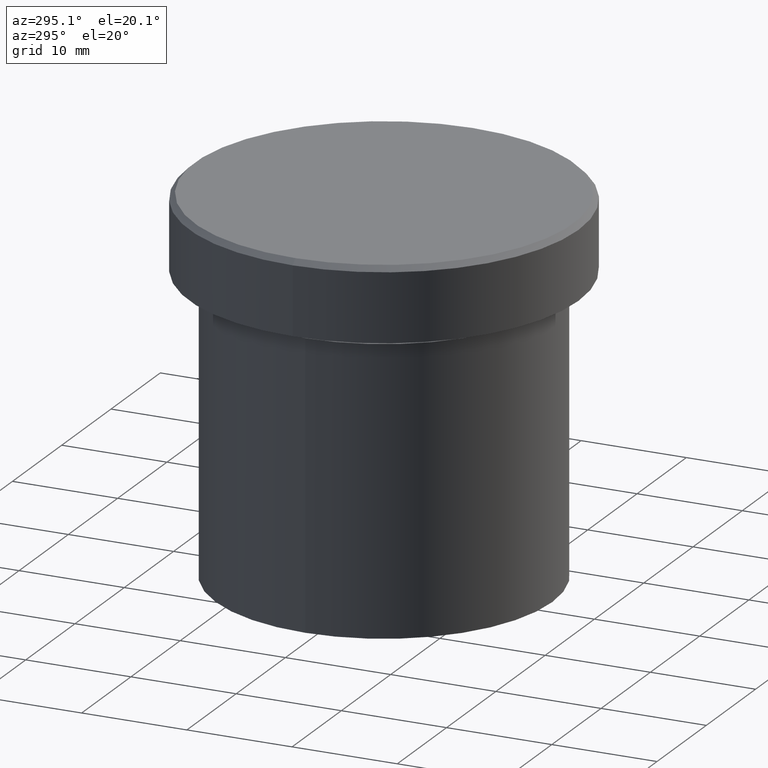
[diagram: clean part render]
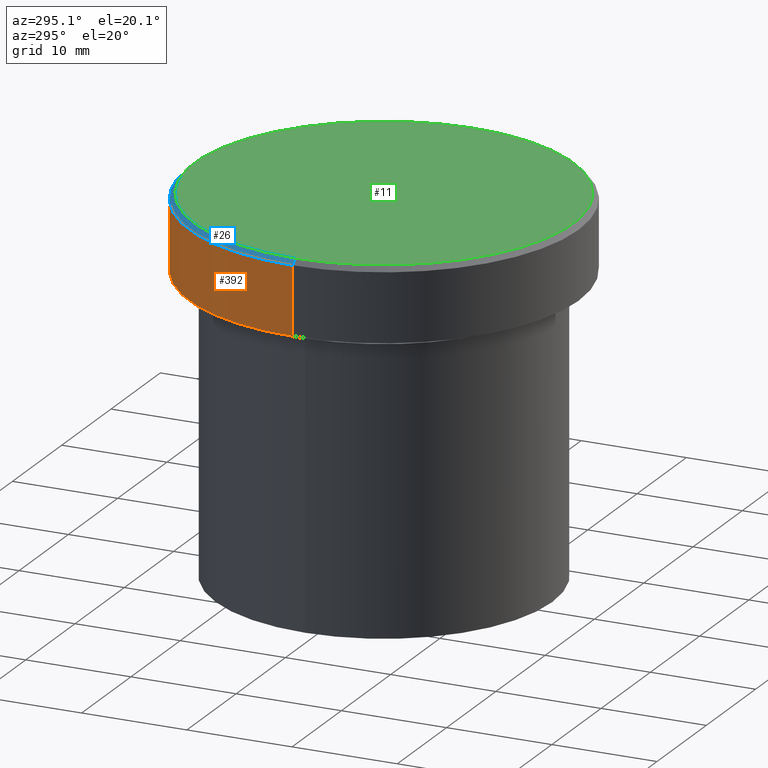
[diagram: same view with three faces highlighted in distinct colors, each labeled with its STEP entity id]
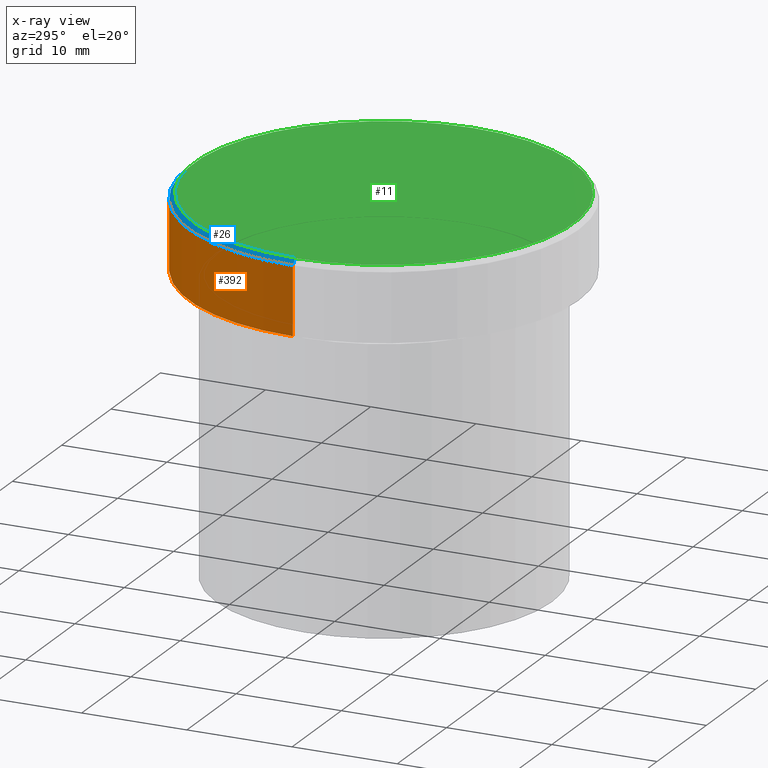
[diagram: x-ray of the same camera — body ghosted, the three highlighted faces saturated]
A machine part, auxiliary view with three faces highlighted in distinct colors.
The next image is the same camera in x-ray (body ghosted, the three faces saturated) — at least one of them is partly hidden behind the body in this view.
Their STEP definitions:

[orange] entity #392 — the highlighted cylindrical surface (partial cylindrical patch) has radius 18.5 mm, axis along (-0, -0, 1).
#3 = DIRECTION ( 'NONE',  ( 1.000000000000000000, 0.000000000000000000, 0.000000000000000000 ) ) ;
#21 = EDGE_LOOP ( 'NONE', ( #148, #104, #323, #394 ) ) ;
#23 = CIRCLE ( 'NONE', #409, 18.50000000000000000 ) ;
#52 = DIRECTION ( 'NONE',  ( 1.000000000000000000, 0.000000000000000000, 0.000000000000000000 ) ) ;
#57 = LINE ( 'NONE', #368, #141 ) ;
#100 = CARTESIAN_POINT ( 'NONE',  ( -18.50000000000000000, 2.265596578422603396E-15, -0.4999999999999936162 ) ) ;
#104 = ORIENTED_EDGE ( 'NONE', *, *, #201, .T. ) ;
#114 = DIRECTION ( 'NONE',  ( 0.000000000000000000, 0.000000000000000000, -1.000000000000000000 ) ) ;
#139 = EDGE_CURVE ( 'NONE', #295, #276, #304, .T. ) ;
#141 = VECTOR ( 'NONE', #338, 1000.000000000000000 ) ;
#148 = ORIENTED_EDGE ( 'NONE', *, *, #226, .T. ) ;
#159 = EDGE_CURVE ( 'NONE', #374, #276, #235, .T. ) ;
#160 = CARTESIAN_POINT ( 'NONE',  ( 0.000000000000000000, 0.000000000000000000, 0.000000000000000000 ) ) ;
#170 = VERTEX_POINT ( 'NONE', #209 ) ;
#182 = DIRECTION ( 'NONE',  ( 1.000000000000000000, 0.000000000000000000, 0.000000000000000000 ) ) ;
#186 = CARTESIAN_POINT ( 'NONE',  ( 18.50000000000000000, 0.000000000000000000, -6.999999999999999112 ) ) ;
#190 = CYLINDRICAL_SURFACE ( 'NONE', #371, 18.50000000000000000 ) ;
#201 = EDGE_CURVE ( 'NONE', #170, #295, #57, .T. ) ;
#209 = CARTESIAN_POINT ( 'NONE',  ( -18.50000000000000000, 2.265596578422603396E-15, -6.999999999999999112 ) ) ;
#217 = CARTESIAN_POINT ( 'NONE',  ( 0.000000000000000000, 0.000000000000000000, -0.4999999999999936162 ) ) ;
#226 = EDGE_CURVE ( 'NONE', #374, #170, #23, .T. ) ;
#231 = AXIS2_PLACEMENT_3D ( 'NONE', #217, #114, #182 ) ;
#235 = LINE ( 'NONE', #373, #264 ) ;
#248 = FACE_OUTER_BOUND ( 'NONE', #21, .T. ) ;
#264 = VECTOR ( 'NONE', #345, 1000.000000000000000 ) ;
#276 = VERTEX_POINT ( 'NONE', #314 ) ;
#289 = DIRECTION ( 'NONE',  ( -0.000000000000000000, -0.000000000000000000, 1.000000000000000000 ) ) ;
#295 = VERTEX_POINT ( 'NONE', #100 ) ;
#302 = CARTESIAN_POINT ( 'NONE',  ( 0.000000000000000000, 0.000000000000000000, -6.999999999999999112 ) ) ;
#304 = CIRCLE ( 'NONE', #231, 18.50000000000000000 ) ;
#314 = CARTESIAN_POINT ( 'NONE',  ( 18.50000000000000000, 0.000000000000000000, -0.4999999999999936162 ) ) ;
#323 = ORIENTED_EDGE ( 'NONE', *, *, #139, .T. ) ;
#338 = DIRECTION ( 'NONE',  ( -0.000000000000000000, -0.000000000000000000, 1.000000000000000000 ) ) ;
#345 = DIRECTION ( 'NONE',  ( -0.000000000000000000, -0.000000000000000000, 1.000000000000000000 ) ) ;
#368 = CARTESIAN_POINT ( 'NONE',  ( -18.50000000000000000, 2.265596578422603396E-15, 0.000000000000000000 ) ) ;
#371 = AXIS2_PLACEMENT_3D ( 'NONE', #160, #289, #3 ) ;
#373 = CARTESIAN_POINT ( 'NONE',  ( 18.50000000000000000, 0.000000000000000000, 0.000000000000000000 ) ) ;
#374 = VERTEX_POINT ( 'NONE', #186 ) ;
#392 = ADVANCED_FACE ( 'NONE', ( #248 ), #190, .T. ) ;
#394 = ORIENTED_EDGE ( 'NONE', *, *, #159, .F. ) ;
#399 = DIRECTION ( 'NONE',  ( -0.000000000000000000, -0.000000000000000000, 1.000000000000000000 ) ) ;
#409 = AXIS2_PLACEMENT_3D ( 'NONE', #302, #399, #52 ) ;

[blue] entity #26 — the highlighted conical surface has half-angle 45 deg.
#25 = CARTESIAN_POINT ( 'NONE',  ( 0.000000000000000000, 0.000000000000000000, 0.000000000000000000 ) ) ;
#26 = ADVANCED_FACE ( 'NONE', ( #317 ), #341, .T. ) ;
#40 = EDGE_LOOP ( 'NONE', ( #241, #270, #74, #109 ) ) ;
#61 = CARTESIAN_POINT ( 'NONE',  ( 0.000000000000000000, 0.000000000000000000, 0.000000000000000000 ) ) ;
#71 = DIRECTION ( 'NONE',  ( -0.7071067811865549002, 0.000000000000000000, -0.7071067811865402453 ) ) ;
#74 = ORIENTED_EDGE ( 'NONE', *, *, #139, .F. ) ;
#86 = VERTEX_POINT ( 'NONE', #93 ) ;
#88 = LINE ( 'NONE', #165, #378 ) ;
#90 = CIRCLE ( 'NONE', #333, 17.99999999999999645 ) ;
#93 = CARTESIAN_POINT ( 'NONE',  ( 17.99999999999999645, 2.234980408443919215E-15, 0.000000000000000000 ) ) ;
#95 = DIRECTION ( 'NONE',  ( 0.7071067811865549002, 8.659560562355021605E-17, -0.7071067811865402453 ) ) ;
#100 = CARTESIAN_POINT ( 'NONE',  ( -18.50000000000000000, 2.265596578422603396E-15, -0.4999999999999936162 ) ) ;
#101 = LINE ( 'NONE', #228, #352 ) ;
#109 = ORIENTED_EDGE ( 'NONE', *, *, #119, .F. ) ;
#114 = DIRECTION ( 'NONE',  ( 0.000000000000000000, 0.000000000000000000, -1.000000000000000000 ) ) ;
#119 = EDGE_CURVE ( 'NONE', #121, #295, #101, .T. ) ;
#121 = VERTEX_POINT ( 'NONE', #303 ) ;
#139 = EDGE_CURVE ( 'NONE', #295, #276, #304, .T. ) ;
#144 = EDGE_CURVE ( 'NONE', #86, #121, #90, .T. ) ;
#165 = CARTESIAN_POINT ( 'NONE',  ( 17.99999999999999645, 2.204364238465235033E-15, 0.000000000000000000 ) ) ;
#182 = DIRECTION ( 'NONE',  ( 1.000000000000000000, 0.000000000000000000, 0.000000000000000000 ) ) ;
#195 = DIRECTION ( 'NONE',  ( -1.000000000000000000, 0.000000000000000000, 0.000000000000000000 ) ) ;
#217 = CARTESIAN_POINT ( 'NONE',  ( 0.000000000000000000, 0.000000000000000000, -0.4999999999999936162 ) ) ;
#228 = CARTESIAN_POINT ( 'NONE',  ( -17.99999999999999645, 0.000000000000000000, 0.000000000000000000 ) ) ;
#231 = AXIS2_PLACEMENT_3D ( 'NONE', #217, #114, #182 ) ;
#239 = EDGE_CURVE ( 'NONE', #86, #276, #88, .T. ) ;
#241 = ORIENTED_EDGE ( 'NONE', *, *, #144, .F. ) ;
#270 = ORIENTED_EDGE ( 'NONE', *, *, #239, .T. ) ;
#273 = DIRECTION ( 'NONE',  ( -0.000000000000000000, -0.000000000000000000, 1.000000000000000000 ) ) ;
#276 = VERTEX_POINT ( 'NONE', #314 ) ;
#295 = VERTEX_POINT ( 'NONE', #100 ) ;
#303 = CARTESIAN_POINT ( 'NONE',  ( -17.99999999999999645, 0.000000000000000000, 0.000000000000000000 ) ) ;
#304 = CIRCLE ( 'NONE', #231, 18.50000000000000000 ) ;
#314 = CARTESIAN_POINT ( 'NONE',  ( 18.50000000000000000, 0.000000000000000000, -0.4999999999999936162 ) ) ;
#317 = FACE_OUTER_BOUND ( 'NONE', #40, .T. ) ;
#333 = AXIS2_PLACEMENT_3D ( 'NONE', #25, #273, #340 ) ;
#340 = DIRECTION ( 'NONE',  ( 1.000000000000000000, 0.000000000000000000, 0.000000000000000000 ) ) ;
#341 = CONICAL_SURFACE ( 'NONE', #407, 17.99999999999999645, 0.7853981633974587151 ) ;
#349 = DIRECTION ( 'NONE',  ( 0.000000000000000000, 0.000000000000000000, -1.000000000000000000 ) ) ;
#352 = VECTOR ( 'NONE', #71, 1000.000000000000114 ) ;
#378 = VECTOR ( 'NONE', #95, 1000.000000000000114 ) ;
#407 = AXIS2_PLACEMENT_3D ( 'NONE', #61, #349, #195 ) ;

[green] entity #11 — the highlighted planar face has unit normal (0, -0, 1).
#5 = DIRECTION ( 'NONE',  ( 1.000000000000000000, 0.000000000000000000, 0.000000000000000000 ) ) ;
#11 = ADVANCED_FACE ( 'NONE', ( #65 ), #193, .T. ) ;
#19 = DIRECTION ( 'NONE',  ( -0.000000000000000000, -0.000000000000000000, 1.000000000000000000 ) ) ;
#25 = CARTESIAN_POINT ( 'NONE',  ( 0.000000000000000000, 0.000000000000000000, 0.000000000000000000 ) ) ;
#28 = AXIS2_PLACEMENT_3D ( 'NONE', #157, #19, #212 ) ;
#42 = ORIENTED_EDGE ( 'NONE', *, *, #166, .T. ) ;
#65 = FACE_OUTER_BOUND ( 'NONE', #171, .T. ) ;
#86 = VERTEX_POINT ( 'NONE', #93 ) ;
#90 = CIRCLE ( 'NONE', #333, 17.99999999999999645 ) ;
#93 = CARTESIAN_POINT ( 'NONE',  ( 17.99999999999999645, 2.234980408443919215E-15, 0.000000000000000000 ) ) ;
#121 = VERTEX_POINT ( 'NONE', #303 ) ;
#143 = ORIENTED_EDGE ( 'NONE', *, *, #144, .T. ) ;
#144 = EDGE_CURVE ( 'NONE', #86, #121, #90, .T. ) ;
#157 = CARTESIAN_POINT ( 'NONE',  ( 0.000000000000000000, 0.000000000000000000, 0.000000000000000000 ) ) ;
#166 = EDGE_CURVE ( 'NONE', #121, #86, #172, .T. ) ;
#171 = EDGE_LOOP ( 'NONE', ( #42, #143 ) ) ;
#172 = CIRCLE ( 'NONE', #28, 17.99999999999999645 ) ;
#189 = CARTESIAN_POINT ( 'NONE',  ( 0.000000000000000000, 0.000000000000000000, 0.000000000000000000 ) ) ;
#193 = PLANE ( 'NONE',  #287 ) ;
#212 = DIRECTION ( 'NONE',  ( 1.000000000000000000, 0.000000000000000000, 0.000000000000000000 ) ) ;
#273 = DIRECTION ( 'NONE',  ( -0.000000000000000000, -0.000000000000000000, 1.000000000000000000 ) ) ;
#287 = AXIS2_PLACEMENT_3D ( 'NONE', #189, #346, #5 ) ;
#303 = CARTESIAN_POINT ( 'NONE',  ( -17.99999999999999645, 0.000000000000000000, 0.000000000000000000 ) ) ;
#333 = AXIS2_PLACEMENT_3D ( 'NONE', #25, #273, #340 ) ;
#340 = DIRECTION ( 'NONE',  ( 1.000000000000000000, 0.000000000000000000, 0.000000000000000000 ) ) ;
#346 = DIRECTION ( 'NONE',  ( 0.000000000000000000, -0.000000000000000000, 1.000000000000000000 ) ) ;